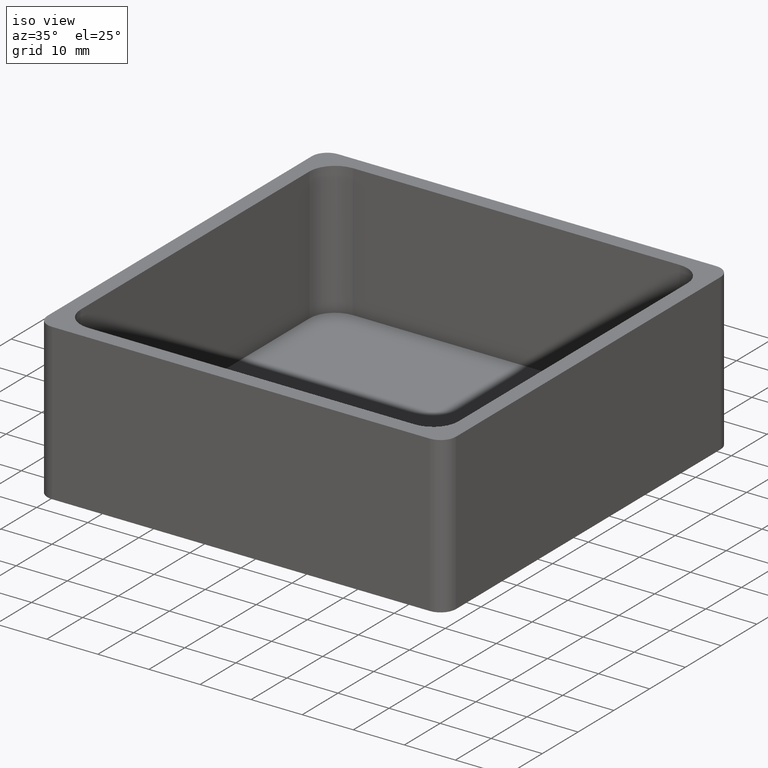
[diagram: clean part render]
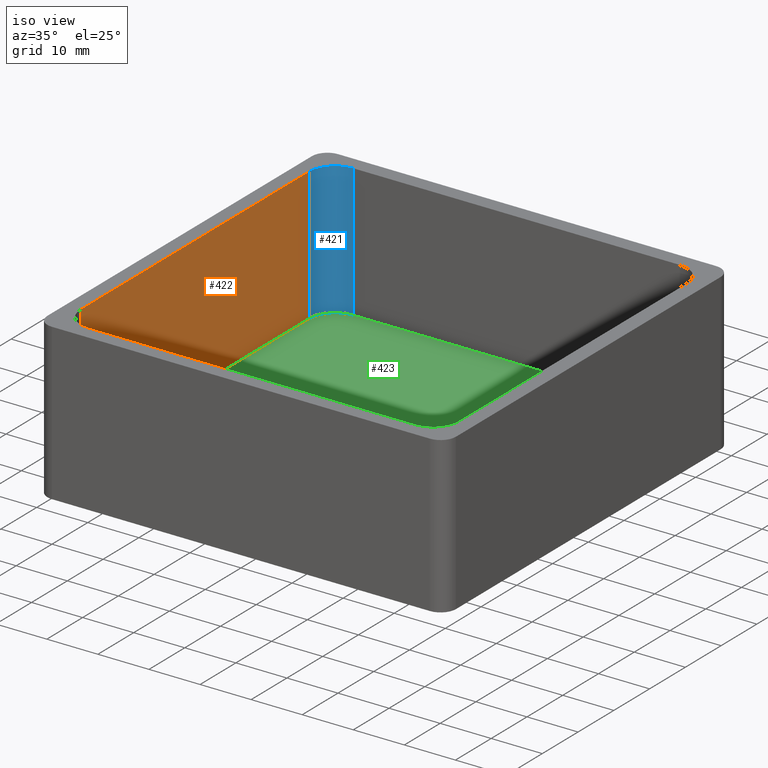
[diagram: same view with three faces highlighted in distinct colors, each labeled with its STEP entity id]
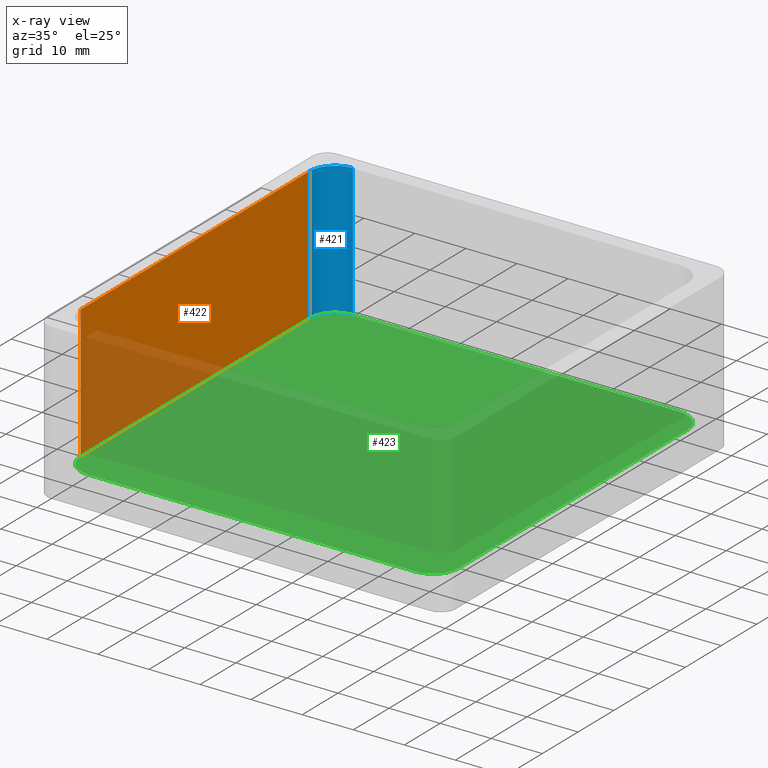
[diagram: x-ray of the same camera — body ghosted, the three highlighted faces saturated]
A machine part, iso view with three faces highlighted in distinct colors.
The next image is the same camera in x-ray (body ghosted, the three faces saturated) — at least one of them is partly hidden behind the body in this view.
Their STEP definitions:

[orange] entity #422 — the highlighted planar face has unit normal (-1, -0, 0).
#20=PLANE('',#456);
#40=FACE_OUTER_BOUND('',#64,.T.);
#64=EDGE_LOOP('',(#315,#316,#317,#318));
#84=LINE('',#616,#128);
#96=LINE('',#651,#140);
#97=LINE('',#654,#141);
#98=LINE('',#655,#142);
#128=VECTOR('',#490,26.);
#140=VECTOR('',#524,26.);
#141=VECTOR('',#529,64.);
#142=VECTOR('',#530,64.);
#188=VERTEX_POINT('',#610);
#190=VERTEX_POINT('',#614);
#201=VERTEX_POINT('',#648);
#202=VERTEX_POINT('',#650);
#230=EDGE_CURVE('',#188,#190,#84,.T.);
#247=EDGE_CURVE('',#201,#202,#96,.T.);
#249=EDGE_CURVE('',#188,#201,#97,.T.);
#250=EDGE_CURVE('',#190,#202,#98,.T.);
#315=ORIENTED_EDGE('',*,*,#249,.F.);
#316=ORIENTED_EDGE('',*,*,#230,.T.);
#317=ORIENTED_EDGE('',*,*,#250,.T.);
#318=ORIENTED_EDGE('',*,*,#247,.F.);
#422=ADVANCED_FACE('',(#40),#20,.F.);
#456=AXIS2_PLACEMENT_3D('',#653,#527,#528);
#490=DIRECTION('',(0.,0.,-1.));
#524=DIRECTION('',(0.,0.,-1.));
#527=DIRECTION('center_axis',(-1.,-2.77555756156289E-16,0.));
#528=DIRECTION('ref_axis',(0.,1.,0.));
#529=DIRECTION('',(-2.77555756156289E-16,1.,0.));
#530=DIRECTION('',(-2.77555756156289E-16,1.,0.));
#610=CARTESIAN_POINT('',(-37.,-32.,30.5));
#614=CARTESIAN_POINT('',(-37.,-32.,4.5));
#616=CARTESIAN_POINT('',(-37.,-32.,30.5));
#648=CARTESIAN_POINT('',(-37.,32.,30.5));
#650=CARTESIAN_POINT('',(-37.,32.,4.5));
#651=CARTESIAN_POINT('',(-37.,32.,30.5));
#653=CARTESIAN_POINT('Origin',(-37.,-32.,30.5));
#654=CARTESIAN_POINT('',(-37.,-16.,30.5));
#655=CARTESIAN_POINT('',(-37.,32.,4.5));

[blue] entity #421 — the highlighted cylindrical surface (edge-blend (fillet) strip) has radius 5 mm, axis along (0, 0, -1).
#39=FACE_OUTER_BOUND('',#63,.T.);
#63=EDGE_LOOP('',(#311,#312,#313,#314));
#94=LINE('',#645,#138);
#96=LINE('',#651,#140);
#138=VECTOR('',#518,26.);
#140=VECTOR('',#524,26.);
#177=CIRCLE('',#454,5.);
#178=CIRCLE('',#455,5.);
#199=VERTEX_POINT('',#642);
#200=VERTEX_POINT('',#644);
#201=VERTEX_POINT('',#648);
#202=VERTEX_POINT('',#650);
#244=EDGE_CURVE('',#199,#200,#94,.T.);
#246=EDGE_CURVE('',#201,#199,#177,.T.);
#247=EDGE_CURVE('',#201,#202,#96,.T.);
#248=EDGE_CURVE('',#202,#200,#178,.T.);
#311=ORIENTED_EDGE('',*,*,#246,.F.);
#312=ORIENTED_EDGE('',*,*,#247,.T.);
#313=ORIENTED_EDGE('',*,*,#248,.T.);
#314=ORIENTED_EDGE('',*,*,#244,.F.);
#410=CYLINDRICAL_SURFACE('',#453,5.);
#421=ADVANCED_FACE('',(#39),#410,.F.);
#453=AXIS2_PLACEMENT_3D('',#647,#520,#521);
#454=AXIS2_PLACEMENT_3D('',#649,#522,#523);
#455=AXIS2_PLACEMENT_3D('',#652,#525,#526);
#518=DIRECTION('',(0.,0.,-1.));
#520=DIRECTION('center_axis',(0.,0.,-1.));
#521=DIRECTION('ref_axis',(8.88178419700126E-16,1.,0.));
#522=DIRECTION('center_axis',(0.,0.,-1.));
#523=DIRECTION('ref_axis',(8.88178419700126E-16,1.,0.));
#524=DIRECTION('',(0.,0.,-1.));
#525=DIRECTION('center_axis',(0.,0.,-1.));
#526=DIRECTION('ref_axis',(8.88178419700126E-16,1.,0.));
#642=CARTESIAN_POINT('',(-32.,37.,30.5));
#644=CARTESIAN_POINT('',(-32.,37.,4.5));
#645=CARTESIAN_POINT('',(-32.,37.,30.5));
#647=CARTESIAN_POINT('Origin',(-32.,32.,30.5));
#648=CARTESIAN_POINT('',(-37.,32.,30.5));
#649=CARTESIAN_POINT('Origin',(-32.,32.,30.5));
#650=CARTESIAN_POINT('',(-37.,32.,4.5));
#651=CARTESIAN_POINT('',(-37.,32.,30.5));
#652=CARTESIAN_POINT('Origin',(-32.,32.,4.5));

[green] entity #423 — the highlighted planar face has unit normal (0, 0, 1).
#21=PLANE('',#457);
#41=FACE_OUTER_BOUND('',#65,.T.);
#65=EDGE_LOOP('',(#319,#320,#321,#322,#323,#324,#325,#326));
#87=LINE('',#622,#131);
#91=LINE('',#634,#135);
#95=LINE('',#646,#139);
#98=LINE('',#655,#142);
#131=VECTOR('',#495,64.);
#135=VECTOR('',#507,64.);
#139=VECTOR('',#519,64.);
#142=VECTOR('',#530,64.);
#172=CIRCLE('',#443,5.00000000000002);
#174=CIRCLE('',#447,4.99999999999999);
#176=CIRCLE('',#451,5.00000000000002);
#178=CIRCLE('',#455,5.);
#189=VERTEX_POINT('',#612);
#190=VERTEX_POINT('',#614);
#192=VERTEX_POINT('',#620);
#194=VERTEX_POINT('',#626);
#196=VERTEX_POINT('',#632);
#198=VERTEX_POINT('',#638);
#200=VERTEX_POINT('',#644);
#202=VERTEX_POINT('',#650);
#229=EDGE_CURVE('',#189,#190,#172,.T.);
#233=EDGE_CURVE('',#192,#189,#87,.T.);
#236=EDGE_CURVE('',#194,#192,#174,.T.);
#239=EDGE_CURVE('',#196,#194,#91,.T.);
#242=EDGE_CURVE('',#198,#196,#176,.T.);
#245=EDGE_CURVE('',#200,#198,#95,.T.);
#248=EDGE_CURVE('',#202,#200,#178,.T.);
#250=EDGE_CURVE('',#190,#202,#98,.T.);
#319=ORIENTED_EDGE('',*,*,#250,.F.);
#320=ORIENTED_EDGE('',*,*,#229,.F.);
#321=ORIENTED_EDGE('',*,*,#233,.F.);
#322=ORIENTED_EDGE('',*,*,#236,.F.);
#323=ORIENTED_EDGE('',*,*,#239,.F.);
#324=ORIENTED_EDGE('',*,*,#242,.F.);
#325=ORIENTED_EDGE('',*,*,#245,.F.);
#326=ORIENTED_EDGE('',*,*,#248,.F.);
#423=ADVANCED_FACE('',(#41),#21,.T.);
#443=AXIS2_PLACEMENT_3D('',#615,#488,#489);
#447=AXIS2_PLACEMENT_3D('',#628,#501,#502);
#451=AXIS2_PLACEMENT_3D('',#640,#513,#514);
#455=AXIS2_PLACEMENT_3D('',#652,#525,#526);
#457=AXIS2_PLACEMENT_3D('',#656,#531,#532);
#488=DIRECTION('center_axis',(0.,0.,-1.));
#489=DIRECTION('ref_axis',(-1.,-3.55271367880049E-15,0.));
#495=DIRECTION('',(-1.,-2.08166817117217E-16,0.));
#501=DIRECTION('center_axis',(0.,0.,-1.));
#502=DIRECTION('ref_axis',(-1.77635683940025E-15,-1.,0.));
#507=DIRECTION('',(1.38777878078145E-16,-1.,0.));
#513=DIRECTION('center_axis',(0.,0.,-1.));
#514=DIRECTION('ref_axis',(1.,3.55271367880049E-15,0.));
#519=DIRECTION('',(1.,0.,0.));
#525=DIRECTION('center_axis',(0.,0.,-1.));
#526=DIRECTION('ref_axis',(8.88178419700126E-16,1.,0.));
#530=DIRECTION('',(-2.77555756156289E-16,1.,0.));
#531=DIRECTION('center_axis',(0.,0.,1.));
#532=DIRECTION('ref_axis',(1.,0.,0.));
#612=CARTESIAN_POINT('',(-32.,-37.,4.5));
#614=CARTESIAN_POINT('',(-37.,-32.,4.5));
#615=CARTESIAN_POINT('Origin',(-32.,-32.,4.5));
#620=CARTESIAN_POINT('',(32.,-37.,4.5));
#622=CARTESIAN_POINT('',(-32.,-37.,4.5));
#626=CARTESIAN_POINT('',(37.,-32.,4.5));
#628=CARTESIAN_POINT('Origin',(32.,-32.,4.5));
#632=CARTESIAN_POINT('',(37.,32.,4.5));
#634=CARTESIAN_POINT('',(37.,-32.,4.5));
#638=CARTESIAN_POINT('',(32.,37.,4.5));
#640=CARTESIAN_POINT('Origin',(32.,32.,4.5));
#644=CARTESIAN_POINT('',(-32.,37.,4.5));
#646=CARTESIAN_POINT('',(32.,37.,4.5));
#650=CARTESIAN_POINT('',(-37.,32.,4.5));
#652=CARTESIAN_POINT('Origin',(-32.,32.,4.5));
#655=CARTESIAN_POINT('',(-37.,32.,4.5));
#656=CARTESIAN_POINT('Origin',(5.24210973356669E-15,3.81244344259395E-15,
4.49999999999999));